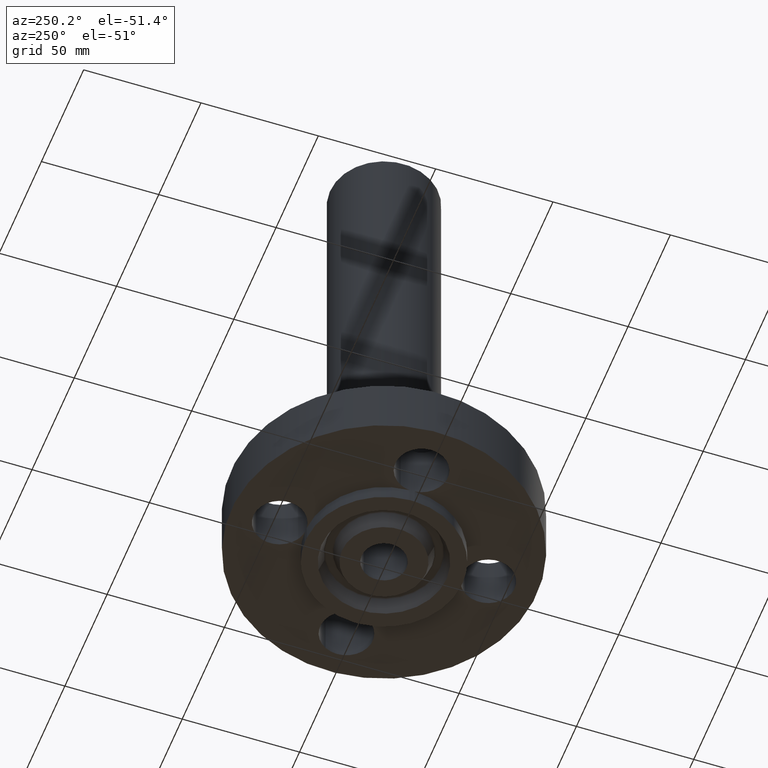
[diagram: clean part render]
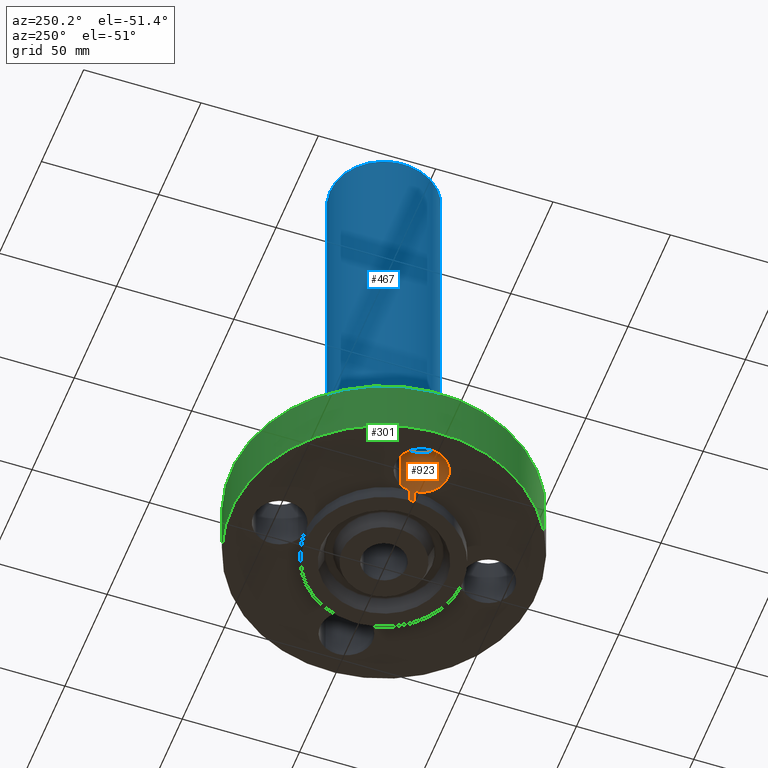
[diagram: same view with three faces highlighted in distinct colors, each labeled with its STEP entity id]
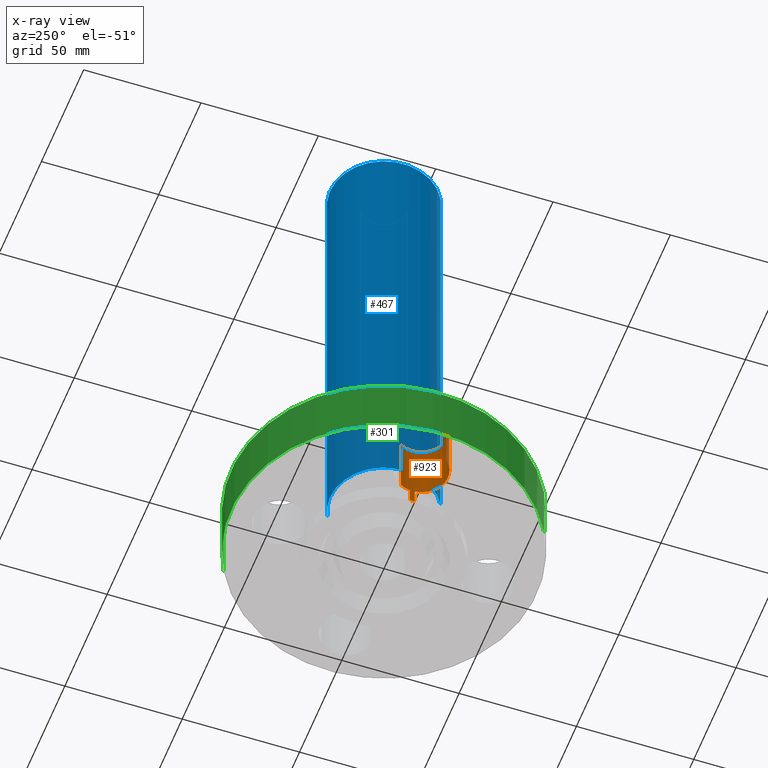
[diagram: x-ray of the same camera — body ghosted, the three highlighted faces saturated]
A machine part, auxiliary view with three faces highlighted in distinct colors.
The next image is the same camera in x-ray (body ghosted, the three faces saturated) — at least one of them is partly hidden behind the body in this view.
Their STEP definitions:

[orange] entity #923 — the highlighted cylindrical surface (edge-blend (fillet) strip) has radius 11.176 mm, axis along (0, 0, 1).
#198=AXIS2_PLACEMENT_3D('Circle Axis2P3D',#196,#197,$) ;
#212=AXIS2_PLACEMENT_3D('Circle Axis2P3D',#210,#211,$) ;
#337=AXIS2_PLACEMENT_3D('Circle Axis2P3D',#335,#336,$) ;
#880=AXIS2_PLACEMENT_3D('Cylinder Axis2P3D',#877,#878,#879) ;
#910=AXIS2_PLACEMENT_3D('Circle Axis2P3D',#908,#909,$) ;
#104=CARTESIAN_POINT('Vertex',(-1.31187321429,-0.0405576089,-3.2782175924E-018)) ;
#193=CARTESIAN_POINT('Vertex',(-1.31187321429,0.0405576089,-3.2782175924E-018)) ;
#196=CARTESIAN_POINT('Axis2P3D Location',(-1.75000000001,-2.79741234551E-016,0.)) ;
#200=CARTESIAN_POINT('Vertex',(-1.36386367277,0.210947236987,0.)) ;
#207=CARTESIAN_POINT('Vertex',(-2.13613632724,-0.210947236987,2.2401153548E-016)) ;
#210=CARTESIAN_POINT('Axis2P3D Location',(-1.75000000001,-2.79741234551E-016,0.)) ;
#332=CARTESIAN_POINT('Vertex',(-1.31187321429,-0.0405576089,-0.250000000001)) ;
#335=CARTESIAN_POINT('Axis2P3D Location',(-1.75000000001,-2.79741234551E-016,-0.250000000001)) ;
#339=CARTESIAN_POINT('Vertex',(-1.31187321429,0.0405576088999,-0.250000000001)) ;
#777=CARTESIAN_POINT('Line Origine',(-1.31187321429,-0.0405576089,-0.125000000001)) ;
#789=CARTESIAN_POINT('Line Origine',(-1.31187321429,0.0405576089,-0.125000000001)) ;
#877=CARTESIAN_POINT('Axis2P3D Location',(-1.75000000001,-2.14313189852E-016,0.00393700787402)) ;
#882=CARTESIAN_POINT('Line Origine',(-1.36386367277,0.210947236987,0.375000000002)) ;
#886=CARTESIAN_POINT('Vertex',(-1.36386367277,0.210947236987,1.)) ;
#893=CARTESIAN_POINT('Vertex',(-2.13613632724,-0.210947236987,1.)) ;
#896=CARTESIAN_POINT('Line Origine',(-2.13613632724,-0.210947236987,0.375000000002)) ;
#908=CARTESIAN_POINT('Axis2P3D Location',(-1.75000000001,-2.14313189852E-016,1.)) ;
#197=DIRECTION('Axis2P3D Direction',(0.,0.,-0.0393700787402)) ;
#211=DIRECTION('Axis2P3D Direction',(0.,0.,-0.0393700787402)) ;
#336=DIRECTION('Axis2P3D Direction',(0.,0.,-0.0393700787402)) ;
#778=DIRECTION('Vector Direction',(0.,0.,-0.0393700787402)) ;
#790=DIRECTION('Vector Direction',(0.,0.,-0.0393700787402)) ;
#878=DIRECTION('Axis2P3D Direction',(0.,0.,0.0393700787402)) ;
#879=DIRECTION('Axis2P3D XDirection',(-0.0345504945626,-0.0188750212049,0.)) ;
#883=DIRECTION('Vector Direction',(0.,0.,0.0393700787402)) ;
#897=DIRECTION('Vector Direction',(0.,0.,0.0393700787402)) ;
#909=DIRECTION('Axis2P3D Direction',(0.,0.,0.0393700787402)) ;
#779=VECTOR('Line Direction',#778,0.0393700787402) ;
#791=VECTOR('Line Direction',#790,0.0393700787402) ;
#884=VECTOR('Line Direction',#883,0.0393700787402) ;
#898=VECTOR('Line Direction',#897,0.0393700787402) ;
#914=ORIENTED_EDGE('',*,*,#900,.F.) ;
#915=ORIENTED_EDGE('',*,*,#912,.F.) ;
#916=ORIENTED_EDGE('',*,*,#888,.T.) ;
#917=ORIENTED_EDGE('',*,*,#202,.T.) ;
#918=ORIENTED_EDGE('',*,*,#793,.T.) ;
#919=ORIENTED_EDGE('',*,*,#341,.T.) ;
#920=ORIENTED_EDGE('',*,*,#781,.F.) ;
#921=ORIENTED_EDGE('',*,*,#214,.T.) ;
#923=ADVANCED_FACE('PartBody',(#922),#881,.F.) ;
#199=CIRCLE('generated circle',#198,0.440000000002) ;
#213=CIRCLE('generated circle',#212,0.440000000002) ;
#338=CIRCLE('generated circle',#337,0.440000000002) ;
#911=CIRCLE('generated circle',#910,0.440000000002) ;
#881=CYLINDRICAL_SURFACE('generated cylinder',#880,0.440000000002) ;
#202=EDGE_CURVE('',#201,#194,#199,.T.) ;
#214=EDGE_CURVE('',#105,#208,#213,.T.) ;
#341=EDGE_CURVE('',#340,#333,#338,.T.) ;
#781=EDGE_CURVE('',#105,#333,#780,.T.) ;
#793=EDGE_CURVE('',#194,#340,#792,.T.) ;
#888=EDGE_CURVE('',#887,#201,#885,.F.) ;
#900=EDGE_CURVE('',#894,#208,#899,.F.) ;
#912=EDGE_CURVE('',#887,#894,#911,.F.) ;
#913=EDGE_LOOP('',(#914,#915,#916,#917,#918,#919,#920,#921)) ;
#922=FACE_OUTER_BOUND('',#913,.T.) ;
#780=LINE('Line',#777,#779) ;
#792=LINE('Line',#789,#791) ;
#885=LINE('Line',#882,#884) ;
#899=LINE('Line',#896,#898) ;
#105=VERTEX_POINT('',#104) ;
#194=VERTEX_POINT('',#193) ;
#201=VERTEX_POINT('',#200) ;
#208=VERTEX_POINT('',#207) ;
#333=VERTEX_POINT('',#332) ;
#340=VERTEX_POINT('',#339) ;
#887=VERTEX_POINT('',#886) ;
#894=VERTEX_POINT('',#893) ;

[blue] entity #467 — the highlighted cylindrical surface (partial cylindrical patch) has radius 22.987 mm, axis along (0, 0, -1).
#414=AXIS2_PLACEMENT_3D('Cylinder Axis2P3D',#411,#412,#413) ;
#453=AXIS2_PLACEMENT_3D('Circle Axis2P3D',#451,#452,$) ;
#458=AXIS2_PLACEMENT_3D('Circle Axis2P3D',#456,#457,$) ;
#411=CARTESIAN_POINT('Axis2P3D Location',(0.,0.,4.25000000002)) ;
#420=CARTESIAN_POINT('Vertex',(0.433880112439,0.794212218514,1.)) ;
#422=CARTESIAN_POINT('Vertex',(-0.433880112439,-0.794212218514,1.)) ;
#425=CARTESIAN_POINT('Line Origine',(0.433880112439,0.794212218514,4.87500000002)) ;
#429=CARTESIAN_POINT('Vertex',(0.433880112439,0.794212218514,8.75000000004)) ;
#436=CARTESIAN_POINT('Vertex',(-0.433880112439,-0.794212218514,8.75000000004)) ;
#439=CARTESIAN_POINT('Line Origine',(-0.433880112439,-0.794212218514,4.87500000002)) ;
#451=CARTESIAN_POINT('Axis2P3D Location',(0.,0.,1.)) ;
#456=CARTESIAN_POINT('Axis2P3D Location',(0.,0.,8.75000000004)) ;
#412=DIRECTION('Axis2P3D Direction',(0.,0.,-0.0393700787402)) ;
#413=DIRECTION('Axis2P3D XDirection',(-0.0188750212049,-0.0345504945626,0.)) ;
#426=DIRECTION('Vector Direction',(0.,0.,-0.0393700787402)) ;
#440=DIRECTION('Vector Direction',(0.,0.,-0.0393700787402)) ;
#452=DIRECTION('Axis2P3D Direction',(0.,0.,-0.0393700787402)) ;
#457=DIRECTION('Axis2P3D Direction',(0.,0.,-0.0393700787402)) ;
#427=VECTOR('Line Direction',#426,0.0393700787402) ;
#441=VECTOR('Line Direction',#440,0.0393700787402) ;
#462=ORIENTED_EDGE('',*,*,#455,.F.) ;
#463=ORIENTED_EDGE('',*,*,#443,.T.) ;
#464=ORIENTED_EDGE('',*,*,#460,.T.) ;
#465=ORIENTED_EDGE('',*,*,#431,.F.) ;
#467=ADVANCED_FACE('PartBody',(#466),#415,.T.) ;
#454=CIRCLE('generated circle',#453,0.905000000004) ;
#459=CIRCLE('generated circle',#458,0.905000000004) ;
#415=CYLINDRICAL_SURFACE('generated cylinder',#414,0.905000000004) ;
#431=EDGE_CURVE('',#421,#430,#428,.F.) ;
#443=EDGE_CURVE('',#423,#437,#442,.F.) ;
#455=EDGE_CURVE('',#423,#421,#454,.T.) ;
#460=EDGE_CURVE('',#437,#430,#459,.T.) ;
#461=EDGE_LOOP('',(#462,#463,#464,#465)) ;
#466=FACE_OUTER_BOUND('',#461,.T.) ;
#428=LINE('Line',#425,#427) ;
#442=LINE('Line',#439,#441) ;
#421=VERTEX_POINT('',#420) ;
#423=VERTEX_POINT('',#422) ;
#430=VERTEX_POINT('',#429) ;
#437=VERTEX_POINT('',#436) ;

[green] entity #301 — the highlighted cylindrical surface (partial cylindrical patch) has radius 65.024 mm, axis along (0, 0, -1).
#82=AXIS2_PLACEMENT_3D('Circle Axis2P3D',#80,#81,$) ;
#274=AXIS2_PLACEMENT_3D('Cylinder Axis2P3D',#271,#272,#273) ;
#285=AXIS2_PLACEMENT_3D('Circle Axis2P3D',#283,#284,$) ;
#80=CARTESIAN_POINT('Axis2P3D Location',(0.,0.,0.)) ;
#84=CARTESIAN_POINT('Vertex',(-1.22732937883,-2.24661135845,0.)) ;
#86=CARTESIAN_POINT('Vertex',(1.22732937883,2.24661135845,0.)) ;
#271=CARTESIAN_POINT('Axis2P3D Location',(0.,0.,4.25000000002)) ;
#276=CARTESIAN_POINT('Line Origine',(-1.22732937883,-2.24661135845,0.500000000002)) ;
#280=CARTESIAN_POINT('Vertex',(-1.22732937883,-2.24661135845,1.)) ;
#283=CARTESIAN_POINT('Axis2P3D Location',(0.,0.,1.)) ;
#287=CARTESIAN_POINT('Vertex',(1.22732937883,2.24661135845,1.)) ;
#290=CARTESIAN_POINT('Line Origine',(1.22732937883,2.24661135845,0.500000000002)) ;
#81=DIRECTION('Axis2P3D Direction',(0.,0.,-0.0393700787402)) ;
#272=DIRECTION('Axis2P3D Direction',(0.,0.,-0.0393700787402)) ;
#273=DIRECTION('Axis2P3D XDirection',(0.0188750212049,0.0345504945626,0.)) ;
#277=DIRECTION('Vector Direction',(0.,0.,-0.0393700787402)) ;
#284=DIRECTION('Axis2P3D Direction',(0.,0.,-0.0393700787402)) ;
#291=DIRECTION('Vector Direction',(0.,0.,-0.0393700787402)) ;
#278=VECTOR('Line Direction',#277,0.0393700787402) ;
#292=VECTOR('Line Direction',#291,0.0393700787402) ;
#296=ORIENTED_EDGE('',*,*,#88,.F.) ;
#297=ORIENTED_EDGE('',*,*,#282,.T.) ;
#298=ORIENTED_EDGE('',*,*,#289,.T.) ;
#299=ORIENTED_EDGE('',*,*,#294,.F.) ;
#301=ADVANCED_FACE('PartBody',(#300),#275,.T.) ;
#83=CIRCLE('generated circle',#82,2.56000000001) ;
#286=CIRCLE('generated circle',#285,2.56000000001) ;
#275=CYLINDRICAL_SURFACE('generated cylinder',#274,2.56000000001) ;
#88=EDGE_CURVE('',#85,#87,#83,.T.) ;
#282=EDGE_CURVE('',#85,#281,#279,.F.) ;
#289=EDGE_CURVE('',#281,#288,#286,.T.) ;
#294=EDGE_CURVE('',#87,#288,#293,.F.) ;
#295=EDGE_LOOP('',(#296,#297,#298,#299)) ;
#300=FACE_OUTER_BOUND('',#295,.T.) ;
#279=LINE('Line',#276,#278) ;
#293=LINE('Line',#290,#292) ;
#85=VERTEX_POINT('',#84) ;
#87=VERTEX_POINT('',#86) ;
#281=VERTEX_POINT('',#280) ;
#288=VERTEX_POINT('',#287) ;